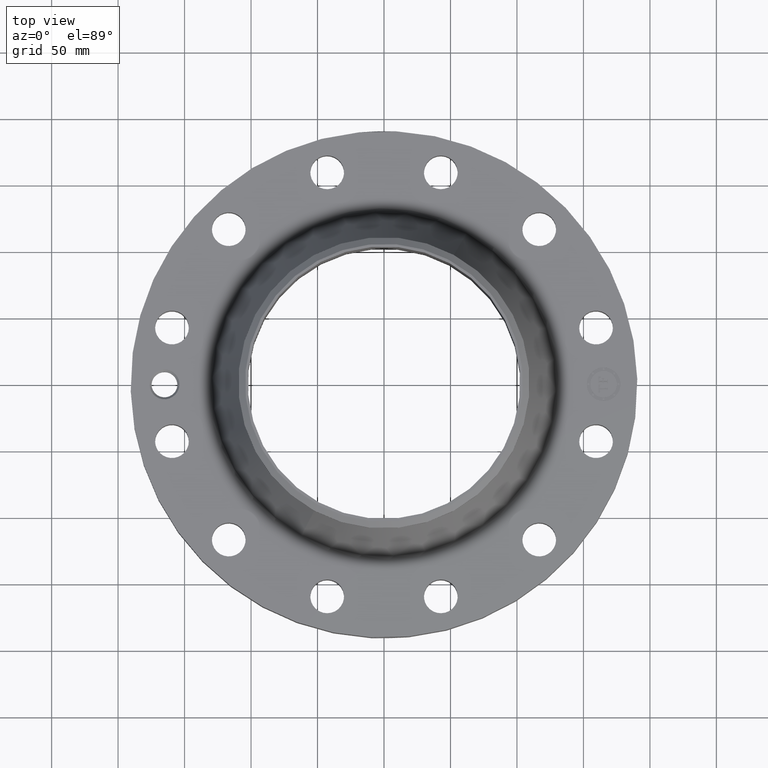
[diagram: clean part render]
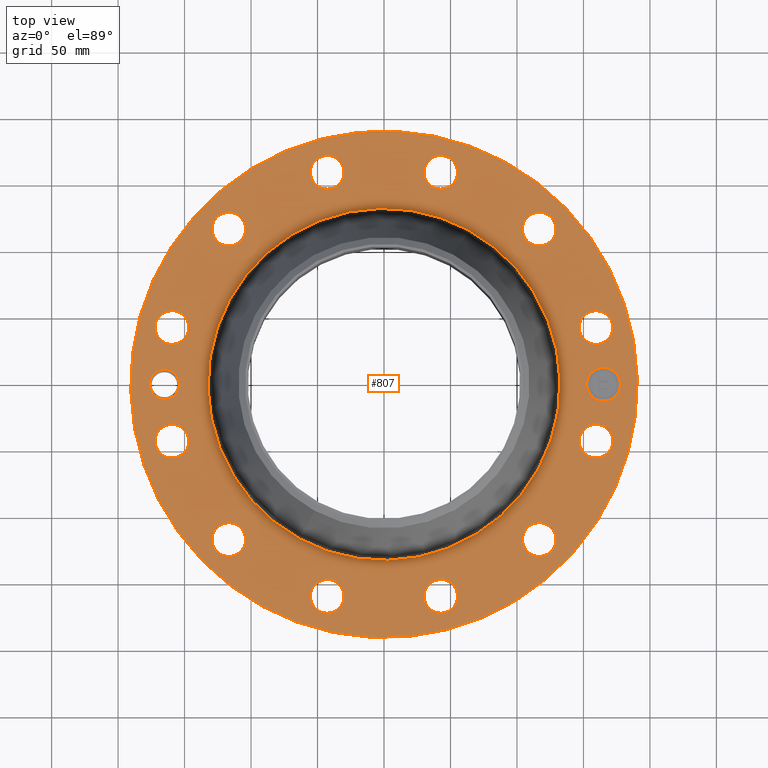
[diagram: same view with one face highlighted and labeled with its STEP entity id]
A machine part, top view. The second image highlights one B-rep face of the part: STEP entity #807.
In plain terms, the highlighted planar face has unit normal (0, 0, -1).
Its self-contained STEP definition (entity closure, byte-faithful):
#58=AXIS2_PLACEMENT_3D('Circle Axis2P3D',#56,#57,$) ;
#431=AXIS2_PLACEMENT_3D('Circle Axis2P3D',#429,#430,$) ;
#531=AXIS2_PLACEMENT_3D('Plane Axis2P3D',#528,#529,#530) ;
#539=AXIS2_PLACEMENT_3D('Circle Axis2P3D',#537,#538,$) ;
#548=AXIS2_PLACEMENT_3D('Circle Axis2P3D',#546,#547,$) ;
#557=AXIS2_PLACEMENT_3D('Circle Axis2P3D',#555,#556,$) ;
#566=AXIS2_PLACEMENT_3D('Circle Axis2P3D',#564,#565,$) ;
#575=AXIS2_PLACEMENT_3D('Circle Axis2P3D',#573,#574,$) ;
#584=AXIS2_PLACEMENT_3D('Circle Axis2P3D',#582,#583,$) ;
#593=AXIS2_PLACEMENT_3D('Circle Axis2P3D',#591,#592,$) ;
#602=AXIS2_PLACEMENT_3D('Circle Axis2P3D',#600,#601,$) ;
#611=AXIS2_PLACEMENT_3D('Circle Axis2P3D',#609,#610,$) ;
#620=AXIS2_PLACEMENT_3D('Circle Axis2P3D',#618,#619,$) ;
#629=AXIS2_PLACEMENT_3D('Circle Axis2P3D',#627,#628,$) ;
#638=AXIS2_PLACEMENT_3D('Circle Axis2P3D',#636,#637,$) ;
#647=AXIS2_PLACEMENT_3D('Circle Axis2P3D',#645,#646,$) ;
#656=AXIS2_PLACEMENT_3D('Circle Axis2P3D',#654,#655,$) ;
#665=AXIS2_PLACEMENT_3D('Circle Axis2P3D',#663,#664,$) ;
#674=AXIS2_PLACEMENT_3D('Circle Axis2P3D',#672,#673,$) ;
#683=AXIS2_PLACEMENT_3D('Circle Axis2P3D',#681,#682,$) ;
#692=AXIS2_PLACEMENT_3D('Circle Axis2P3D',#690,#691,$) ;
#701=AXIS2_PLACEMENT_3D('Circle Axis2P3D',#699,#700,$) ;
#710=AXIS2_PLACEMENT_3D('Circle Axis2P3D',#708,#709,$) ;
#719=AXIS2_PLACEMENT_3D('Circle Axis2P3D',#717,#718,$) ;
#728=AXIS2_PLACEMENT_3D('Circle Axis2P3D',#726,#727,$) ;
#737=AXIS2_PLACEMENT_3D('Circle Axis2P3D',#735,#736,$) ;
#746=AXIS2_PLACEMENT_3D('Circle Axis2P3D',#744,#745,$) ;
#755=AXIS2_PLACEMENT_3D('Circle Axis2P3D',#753,#754,$) ;
#764=AXIS2_PLACEMENT_3D('Circle Axis2P3D',#762,#763,$) ;
#773=AXIS2_PLACEMENT_3D('Circle Axis2P3D',#771,#772,$) ;
#782=AXIS2_PLACEMENT_3D('Circle Axis2P3D',#780,#781,$) ;
#791=AXIS2_PLACEMENT_3D('Circle Axis2P3D',#789,#790,$) ;
#800=AXIS2_PLACEMENT_3D('Circle Axis2P3D',#798,#799,$) ;
#53=CARTESIAN_POINT('Vertex',(-3.59569153955,-6.5818692142,1.68000000001)) ;
#56=CARTESIAN_POINT('Axis2P3D Location',(0.,0.,1.68000000001)) ;
#60=CARTESIAN_POINT('Vertex',(3.59569153955,6.5818692142,1.68000000001)) ;
#429=CARTESIAN_POINT('Axis2P3D Location',(0.,0.,1.68000000001)) ;
#528=CARTESIAN_POINT('Axis2P3D Location',(0.,7.50000000003,1.68000000001)) ;
#537=CARTESIAN_POINT('Axis2P3D Location',(-6.50000000003,1.1189649382E-015,1.68000000001)) ;
#541=CARTESIAN_POINT('Vertex',(-6.88860672217,0.212296819878,1.68000000001)) ;
#543=CARTESIAN_POINT('Vertex',(-6.11139327788,-0.212296819878,1.68000000001)) ;
#546=CARTESIAN_POINT('Axis2P3D Location',(-6.50000000003,1.1189649382E-015,1.68000000001)) ;
#555=CARTESIAN_POINT('Axis2P3D Location',(6.2785178709,-1.68232379317,1.68000000001)) ;
#559=CARTESIAN_POINT('Vertex',(5.83972658996,-1.44261102387,1.68000000001)) ;
#561=CARTESIAN_POINT('Vertex',(6.71730915185,-1.92203656248,1.68000000001)) ;
#564=CARTESIAN_POINT('Axis2P3D Location',(6.2785178709,-1.68232379317,1.68000000001)) ;
#573=CARTESIAN_POINT('Axis2P3D Location',(0.,0.,1.68000000001)) ;
#577=CARTESIAN_POINT('Vertex',(-2.49819019811,-4.57290648414,1.68000000001)) ;
#579=CARTESIAN_POINT('Vertex',(2.49819019811,4.57290648414,1.68000000001)) ;
#582=CARTESIAN_POINT('Axis2P3D Location',(0.,0.,1.68000000001)) ;
#591=CARTESIAN_POINT('Axis2P3D Location',(4.59619407773,-4.59619407773,1.68000000001)) ;
#595=CARTESIAN_POINT('Vertex',(4.85634208934,-5.02318706603,1.68000000001)) ;
#597=CARTESIAN_POINT('Vertex',(4.33604606612,-4.16920108943,1.68000000001)) ;
#600=CARTESIAN_POINT('Axis2P3D Location',(4.59619407773,-4.59619407773,1.68000000001)) ;
#609=CARTESIAN_POINT('Axis2P3D Location',(1.68232379317,-6.2785178709,1.68000000001)) ;
#613=CARTESIAN_POINT('Vertex',(1.69412208582,-6.77837865181,1.68000000001)) ;
#615=CARTESIAN_POINT('Vertex',(1.67052550053,-5.77865708999,1.68000000001)) ;
#618=CARTESIAN_POINT('Axis2P3D Location',(1.68232379317,-6.2785178709,1.68000000001)) ;
#627=CARTESIAN_POINT('Axis2P3D Location',(-1.68232379317,-6.2785178709,1.68000000001)) ;
#631=CARTESIAN_POINT('Vertex',(-1.92203656248,-6.71730915185,1.68000000001)) ;
#633=CARTESIAN_POINT('Vertex',(-1.44261102387,-5.83972658996,1.68000000001)) ;
#636=CARTESIAN_POINT('Axis2P3D Location',(-1.68232379317,-6.2785178709,1.68000000001)) ;
#645=CARTESIAN_POINT('Axis2P3D Location',(-4.59619407773,-4.59619407773,1.68000000001)) ;
#649=CARTESIAN_POINT('Vertex',(-5.02318706603,-4.85634208934,1.68000000001)) ;
#651=CARTESIAN_POINT('Vertex',(-4.16920108943,-4.33604606612,1.68000000001)) ;
#654=CARTESIAN_POINT('Axis2P3D Location',(-4.59619407773,-4.59619407773,1.68000000001)) ;
#663=CARTESIAN_POINT('Axis2P3D Location',(-6.2785178709,-1.68232379317,1.68000000001)) ;
#667=CARTESIAN_POINT('Vertex',(-6.77837865181,-1.69412208582,1.68000000001)) ;
#669=CARTESIAN_POINT('Vertex',(-5.77865708999,-1.67052550053,1.68000000001)) ;
#672=CARTESIAN_POINT('Axis2P3D Location',(-6.2785178709,-1.68232379317,1.68000000001)) ;
#681=CARTESIAN_POINT('Axis2P3D Location',(-6.2785178709,1.68232379317,1.68000000001)) ;
#685=CARTESIAN_POINT('Vertex',(-6.71730915185,1.92203656248,1.68000000001)) ;
#687=CARTESIAN_POINT('Vertex',(-5.83972658996,1.44261102387,1.68000000001)) ;
#690=CARTESIAN_POINT('Axis2P3D Location',(-6.2785178709,1.68232379317,1.68000000001)) ;
#699=CARTESIAN_POINT('Axis2P3D Location',(-4.59619407773,4.59619407773,1.68000000001)) ;
#703=CARTESIAN_POINT('Vertex',(-4.85634208934,5.02318706603,1.68000000001)) ;
#705=CARTESIAN_POINT('Vertex',(-4.33604606612,4.16920108943,1.68000000001)) ;
#708=CARTESIAN_POINT('Axis2P3D Location',(-4.59619407773,4.59619407773,1.68000000001)) ;
#717=CARTESIAN_POINT('Axis2P3D Location',(-1.68232379317,6.2785178709,1.68000000001)) ;
#721=CARTESIAN_POINT('Vertex',(-1.69412208582,6.77837865181,1.68000000001)) ;
#723=CARTESIAN_POINT('Vertex',(-1.67052550053,5.77865708999,1.68000000001)) ;
#726=CARTESIAN_POINT('Axis2P3D Location',(-1.68232379317,6.2785178709,1.68000000001)) ;
#735=CARTESIAN_POINT('Axis2P3D Location',(1.68232379317,6.2785178709,1.68000000001)) ;
#739=CARTESIAN_POINT('Vertex',(1.92203656248,6.71730915185,1.68000000001)) ;
#741=CARTESIAN_POINT('Vertex',(1.44261102387,5.83972658996,1.68000000001)) ;
#744=CARTESIAN_POINT('Axis2P3D Location',(1.68232379317,6.2785178709,1.68000000001)) ;
#753=CARTESIAN_POINT('Axis2P3D Location',(4.59619407773,4.59619407773,1.68000000001)) ;
#757=CARTESIAN_POINT('Vertex',(5.02318706603,4.85634208934,1.68000000001)) ;
#759=CARTESIAN_POINT('Vertex',(4.16920108943,4.33604606612,1.68000000001)) ;
#762=CARTESIAN_POINT('Axis2P3D Location',(4.59619407773,4.59619407773,1.68000000001)) ;
#771=CARTESIAN_POINT('Axis2P3D Location',(6.2785178709,1.68232379317,1.68000000001)) ;
#775=CARTESIAN_POINT('Vertex',(6.77837865181,1.69412208582,1.68000000001)) ;
#777=CARTESIAN_POINT('Vertex',(5.77865708999,1.67052550053,1.68000000001)) ;
#780=CARTESIAN_POINT('Axis2P3D Location',(6.2785178709,1.68232379317,1.68000000001)) ;
#789=CARTESIAN_POINT('Axis2P3D Location',(6.50000000003,0.,1.68000000001)) ;
#793=CARTESIAN_POINT('Vertex',(6.50000000003,0.499999995002,1.68000000001)) ;
#795=CARTESIAN_POINT('Vertex',(6.50000000003,-0.499999995002,1.68000000001)) ;
#798=CARTESIAN_POINT('Axis2P3D Location',(6.50000000003,0.,1.68000000001)) ;
#57=DIRECTION('Axis2P3D Direction',(0.,0.,-0.0393700787402)) ;
#430=DIRECTION('Axis2P3D Direction',(0.,0.,-0.0393700787402)) ;
#529=DIRECTION('Axis2P3D Direction',(0.,0.,-0.0393700787402)) ;
#530=DIRECTION('Axis2P3D XDirection',(0.0393700787402,0.,0.)) ;
#538=DIRECTION('Axis2P3D Direction',(0.,0.,-0.0393700787402)) ;
#547=DIRECTION('Axis2P3D Direction',(0.,0.,-0.0393700787402)) ;
#556=DIRECTION('Axis2P3D Direction',(0.,0.,-0.0393700787402)) ;
#565=DIRECTION('Axis2P3D Direction',(0.,0.,-0.0393700787402)) ;
#574=DIRECTION('Axis2P3D Direction',(0.,0.,-0.0393700787402)) ;
#583=DIRECTION('Axis2P3D Direction',(0.,0.,-0.0393700787402)) ;
#592=DIRECTION('Axis2P3D Direction',(0.,0.,-0.0393700787402)) ;
#601=DIRECTION('Axis2P3D Direction',(0.,0.,-0.0393700787402)) ;
#610=DIRECTION('Axis2P3D Direction',(0.,0.,-0.0393700787402)) ;
#619=DIRECTION('Axis2P3D Direction',(0.,0.,-0.0393700787402)) ;
#628=DIRECTION('Axis2P3D Direction',(0.,0.,-0.0393700787402)) ;
#637=DIRECTION('Axis2P3D Direction',(0.,0.,-0.0393700787402)) ;
#646=DIRECTION('Axis2P3D Direction',(0.,0.,-0.0393700787402)) ;
#655=DIRECTION('Axis2P3D Direction',(0.,0.,-0.0393700787402)) ;
#664=DIRECTION('Axis2P3D Direction',(0.,0.,-0.0393700787402)) ;
#673=DIRECTION('Axis2P3D Direction',(0.,0.,-0.0393700787402)) ;
#682=DIRECTION('Axis2P3D Direction',(0.,0.,-0.0393700787402)) ;
#691=DIRECTION('Axis2P3D Direction',(0.,0.,-0.0393700787402)) ;
#700=DIRECTION('Axis2P3D Direction',(0.,0.,-0.0393700787402)) ;
#709=DIRECTION('Axis2P3D Direction',(0.,0.,-0.0393700787402)) ;
#718=DIRECTION('Axis2P3D Direction',(0.,0.,-0.0393700787402)) ;
#727=DIRECTION('Axis2P3D Direction',(0.,0.,-0.0393700787402)) ;
#736=DIRECTION('Axis2P3D Direction',(0.,0.,-0.0393700787402)) ;
#745=DIRECTION('Axis2P3D Direction',(0.,0.,-0.0393700787402)) ;
#754=DIRECTION('Axis2P3D Direction',(0.,0.,-0.0393700787402)) ;
#763=DIRECTION('Axis2P3D Direction',(0.,0.,-0.0393700787402)) ;
#772=DIRECTION('Axis2P3D Direction',(0.,0.,-0.0393700787402)) ;
#781=DIRECTION('Axis2P3D Direction',(0.,0.,-0.0393700787402)) ;
#790=DIRECTION('Axis2P3D Direction',(0.,0.,-0.0393700787402)) ;
#799=DIRECTION('Axis2P3D Direction',(0.,0.,-0.0393700787402)) ;
#534=ORIENTED_EDGE('',*,*,#433,.F.) ;
#535=ORIENTED_EDGE('',*,*,#62,.F.) ;
#552=ORIENTED_EDGE('',*,*,#545,.T.) ;
#553=ORIENTED_EDGE('',*,*,#550,.T.) ;
#570=ORIENTED_EDGE('',*,*,#563,.T.) ;
#571=ORIENTED_EDGE('',*,*,#568,.T.) ;
#588=ORIENTED_EDGE('',*,*,#581,.T.) ;
#589=ORIENTED_EDGE('',*,*,#586,.T.) ;
#606=ORIENTED_EDGE('',*,*,#599,.T.) ;
#607=ORIENTED_EDGE('',*,*,#604,.T.) ;
#624=ORIENTED_EDGE('',*,*,#617,.T.) ;
#625=ORIENTED_EDGE('',*,*,#622,.T.) ;
#642=ORIENTED_EDGE('',*,*,#635,.T.) ;
#643=ORIENTED_EDGE('',*,*,#640,.T.) ;
#660=ORIENTED_EDGE('',*,*,#653,.T.) ;
#661=ORIENTED_EDGE('',*,*,#658,.T.) ;
#678=ORIENTED_EDGE('',*,*,#671,.T.) ;
#679=ORIENTED_EDGE('',*,*,#676,.T.) ;
#696=ORIENTED_EDGE('',*,*,#689,.T.) ;
#697=ORIENTED_EDGE('',*,*,#694,.T.) ;
#714=ORIENTED_EDGE('',*,*,#707,.T.) ;
#715=ORIENTED_EDGE('',*,*,#712,.T.) ;
#732=ORIENTED_EDGE('',*,*,#725,.T.) ;
#733=ORIENTED_EDGE('',*,*,#730,.T.) ;
#750=ORIENTED_EDGE('',*,*,#743,.T.) ;
#751=ORIENTED_EDGE('',*,*,#748,.T.) ;
#768=ORIENTED_EDGE('',*,*,#761,.T.) ;
#769=ORIENTED_EDGE('',*,*,#766,.T.) ;
#786=ORIENTED_EDGE('',*,*,#779,.T.) ;
#787=ORIENTED_EDGE('',*,*,#784,.T.) ;
#804=ORIENTED_EDGE('',*,*,#797,.T.) ;
#805=ORIENTED_EDGE('',*,*,#802,.T.) ;
#554=FACE_BOUND('',#551,.T.) ;
#572=FACE_BOUND('',#569,.T.) ;
#590=FACE_BOUND('',#587,.T.) ;
#608=FACE_BOUND('',#605,.T.) ;
#626=FACE_BOUND('',#623,.T.) ;
#644=FACE_BOUND('',#641,.T.) ;
#662=FACE_BOUND('',#659,.T.) ;
#680=FACE_BOUND('',#677,.T.) ;
#698=FACE_BOUND('',#695,.T.) ;
#716=FACE_BOUND('',#713,.T.) ;
#734=FACE_BOUND('',#731,.T.) ;
#752=FACE_BOUND('',#749,.T.) ;
#770=FACE_BOUND('',#767,.T.) ;
#788=FACE_BOUND('',#785,.T.) ;
#806=FACE_BOUND('',#803,.T.) ;
#807=ADVANCED_FACE('PartBody',(#536,#554,#572,#590,#608,#626,#644,#662,#680,#698,#716,#734,#752,#770,#788,#806),#532,.F.) ;
#59=CIRCLE('generated circle',#58,7.50000000003) ;
#432=CIRCLE('generated circle',#431,7.50000000003) ;
#540=CIRCLE('generated circle',#539,0.442815000002) ;
#549=CIRCLE('generated circle',#548,0.442815000002) ;
#558=CIRCLE('generated circle',#557,0.500000000002) ;
#567=CIRCLE('generated circle',#566,0.500000000002) ;
#576=CIRCLE('generated circle',#575,5.2107991689) ;
#585=CIRCLE('generated circle',#584,5.2107991689) ;
#594=CIRCLE('generated circle',#593,0.500000000002) ;
#603=CIRCLE('generated circle',#602,0.500000000002) ;
#612=CIRCLE('generated circle',#611,0.500000000002) ;
#621=CIRCLE('generated circle',#620,0.500000000002) ;
#630=CIRCLE('generated circle',#629,0.500000000002) ;
#639=CIRCLE('generated circle',#638,0.500000000002) ;
#648=CIRCLE('generated circle',#647,0.500000000002) ;
#657=CIRCLE('generated circle',#656,0.500000000002) ;
#666=CIRCLE('generated circle',#665,0.500000000002) ;
#675=CIRCLE('generated circle',#674,0.500000000002) ;
#684=CIRCLE('generated circle',#683,0.500000000002) ;
#693=CIRCLE('generated circle',#692,0.500000000002) ;
#702=CIRCLE('generated circle',#701,0.500000000002) ;
#711=CIRCLE('generated circle',#710,0.500000000002) ;
#720=CIRCLE('generated circle',#719,0.500000000002) ;
#729=CIRCLE('generated circle',#728,0.500000000002) ;
#738=CIRCLE('generated circle',#737,0.500000000002) ;
#747=CIRCLE('generated circle',#746,0.500000000002) ;
#756=CIRCLE('generated circle',#755,0.500000000002) ;
#765=CIRCLE('generated circle',#764,0.500000000002) ;
#774=CIRCLE('generated circle',#773,0.500000000002) ;
#783=CIRCLE('generated circle',#782,0.500000000002) ;
#792=CIRCLE('generated circle',#791,0.499999995002) ;
#801=CIRCLE('generated circle',#800,0.499999995002) ;
#62=EDGE_CURVE('',#54,#61,#59,.T.) ;
#433=EDGE_CURVE('',#61,#54,#432,.T.) ;
#545=EDGE_CURVE('',#542,#544,#540,.T.) ;
#550=EDGE_CURVE('',#544,#542,#549,.T.) ;
#563=EDGE_CURVE('',#560,#562,#558,.T.) ;
#568=EDGE_CURVE('',#562,#560,#567,.T.) ;
#581=EDGE_CURVE('',#578,#580,#576,.T.) ;
#586=EDGE_CURVE('',#580,#578,#585,.T.) ;
#599=EDGE_CURVE('',#596,#598,#594,.T.) ;
#604=EDGE_CURVE('',#598,#596,#603,.T.) ;
#617=EDGE_CURVE('',#614,#616,#612,.T.) ;
#622=EDGE_CURVE('',#616,#614,#621,.T.) ;
#635=EDGE_CURVE('',#632,#634,#630,.T.) ;
#640=EDGE_CURVE('',#634,#632,#639,.T.) ;
#653=EDGE_CURVE('',#650,#652,#648,.T.) ;
#658=EDGE_CURVE('',#652,#650,#657,.T.) ;
#671=EDGE_CURVE('',#668,#670,#666,.T.) ;
#676=EDGE_CURVE('',#670,#668,#675,.T.) ;
#689=EDGE_CURVE('',#686,#688,#684,.T.) ;
#694=EDGE_CURVE('',#688,#686,#693,.T.) ;
#707=EDGE_CURVE('',#704,#706,#702,.T.) ;
#712=EDGE_CURVE('',#706,#704,#711,.T.) ;
#725=EDGE_CURVE('',#722,#724,#720,.T.) ;
#730=EDGE_CURVE('',#724,#722,#729,.T.) ;
#743=EDGE_CURVE('',#740,#742,#738,.T.) ;
#748=EDGE_CURVE('',#742,#740,#747,.T.) ;
#761=EDGE_CURVE('',#758,#760,#756,.T.) ;
#766=EDGE_CURVE('',#760,#758,#765,.T.) ;
#779=EDGE_CURVE('',#776,#778,#774,.T.) ;
#784=EDGE_CURVE('',#778,#776,#783,.T.) ;
#797=EDGE_CURVE('',#794,#796,#792,.T.) ;
#802=EDGE_CURVE('',#796,#794,#801,.T.) ;
#533=EDGE_LOOP('',(#534,#535)) ;
#551=EDGE_LOOP('',(#552,#553)) ;
#569=EDGE_LOOP('',(#570,#571)) ;
#587=EDGE_LOOP('',(#588,#589)) ;
#605=EDGE_LOOP('',(#606,#607)) ;
#623=EDGE_LOOP('',(#624,#625)) ;
#641=EDGE_LOOP('',(#642,#643)) ;
#659=EDGE_LOOP('',(#660,#661)) ;
#677=EDGE_LOOP('',(#678,#679)) ;
#695=EDGE_LOOP('',(#696,#697)) ;
#713=EDGE_LOOP('',(#714,#715)) ;
#731=EDGE_LOOP('',(#732,#733)) ;
#749=EDGE_LOOP('',(#750,#751)) ;
#767=EDGE_LOOP('',(#768,#769)) ;
#785=EDGE_LOOP('',(#786,#787)) ;
#803=EDGE_LOOP('',(#804,#805)) ;
#536=FACE_OUTER_BOUND('',#533,.T.) ;
#532=PLANE('',#531) ;
#54=VERTEX_POINT('',#53) ;
#61=VERTEX_POINT('',#60) ;
#542=VERTEX_POINT('',#541) ;
#544=VERTEX_POINT('',#543) ;
#560=VERTEX_POINT('',#559) ;
#562=VERTEX_POINT('',#561) ;
#578=VERTEX_POINT('',#577) ;
#580=VERTEX_POINT('',#579) ;
#596=VERTEX_POINT('',#595) ;
#598=VERTEX_POINT('',#597) ;
#614=VERTEX_POINT('',#613) ;
#616=VERTEX_POINT('',#615) ;
#632=VERTEX_POINT('',#631) ;
#634=VERTEX_POINT('',#633) ;
#650=VERTEX_POINT('',#649) ;
#652=VERTEX_POINT('',#651) ;
#668=VERTEX_POINT('',#667) ;
#670=VERTEX_POINT('',#669) ;
#686=VERTEX_POINT('',#685) ;
#688=VERTEX_POINT('',#687) ;
#704=VERTEX_POINT('',#703) ;
#706=VERTEX_POINT('',#705) ;
#722=VERTEX_POINT('',#721) ;
#724=VERTEX_POINT('',#723) ;
#740=VERTEX_POINT('',#739) ;
#742=VERTEX_POINT('',#741) ;
#758=VERTEX_POINT('',#757) ;
#760=VERTEX_POINT('',#759) ;
#776=VERTEX_POINT('',#775) ;
#778=VERTEX_POINT('',#777) ;
#794=VERTEX_POINT('',#793) ;
#796=VERTEX_POINT('',#795) ;